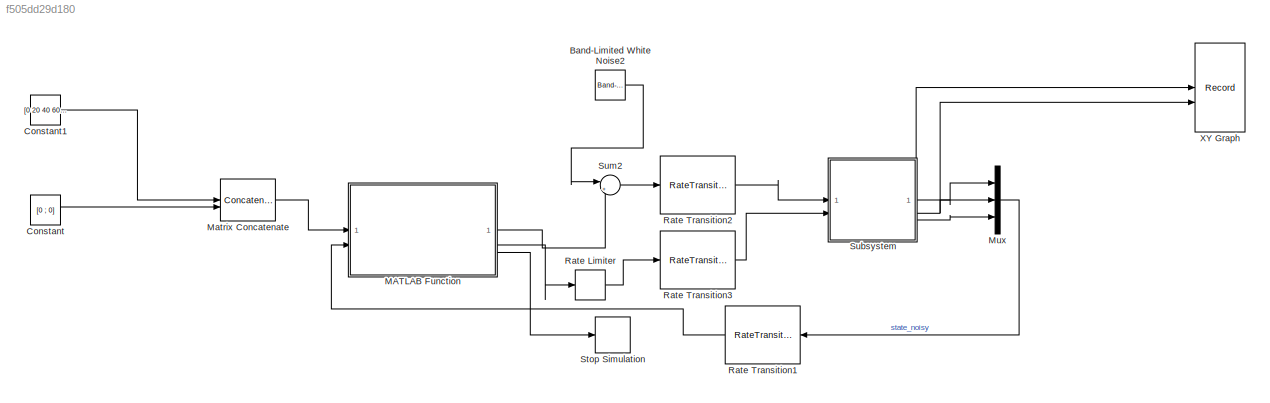
MODEL slx_f505dd29d180
KIND model
CONFIG AbsTol = auto
CONFIG EnableMultiTasking = off
CONFIG FixedStep = auto
CONFIG MaxStep = auto
CONFIG MinStep = auto
CONFIG RelTol = 1e-3
CONFIG SampleTimeConstraint = Unconstrained
CONFIG SolverName = VariableStepAuto
CONFIG StartTime = 0.0
CONFIG StopTime = 30
BLOCK [Reference] Band-Limited White Noise2  REF=simulink/Sources/Band-Limited
White Noise
  SourceBlock = simulink/Sources/Band-Limited\nWhite Noise
  SourceType = Band-Limited White Noise.
  Tag = noise_x
BLOCK [Constant] Constant
  Value = [0 ; 0]
BLOCK [Constant] Constant1
  Value = [0 20 40 60 80 100 120 140 160 180 200;0 10 20 20 10 0 -10 -20 -20 -10 0]
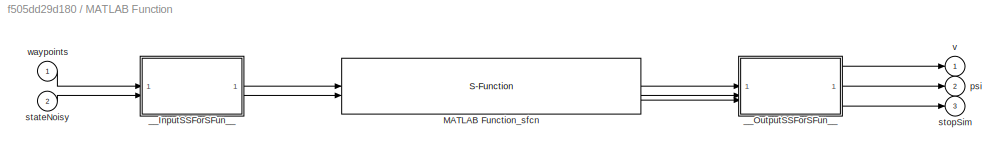
BLOCK [SubSystem] MATLAB Function
BLOCK [S-Function] MATLAB Function/MATLAB Function_sfcn
  CopyFcn = if ~strcmp(get_param(gcb,'Linkstatus'),'none') && ...\n~strcmp(get_param(gcb,'Linkstatus'),'implicit')      \n  set_param(gcb,'LinkStatus','none');                \nend
  EnableBusSupport = off
  FunctionName = MATLAB0_sf
  SFcnIsStateOwnerBlock = off
  SFunctionDeploymentMode = off
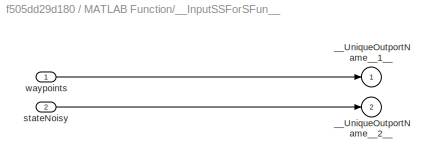
BLOCK [SubSystem] MATLAB Function/__InputSSForSFun__
  PermitHierarchicalResolution = ExplicitOnly
BLOCK [Outport] MATLAB Function/__InputSSForSFun__/__UniqueOutportName__1__
BLOCK [Outport] MATLAB Function/__InputSSForSFun__/__UniqueOutportName__2__
  Port = 2
BLOCK [Inport] MATLAB Function/__InputSSForSFun__/stateNoisy
  Port = 2
BLOCK [Inport] MATLAB Function/__InputSSForSFun__/waypoints
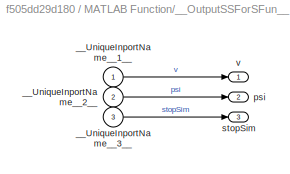
BLOCK [SubSystem] MATLAB Function/__OutputSSForSFun__
  PermitHierarchicalResolution = ExplicitOnly
BLOCK [Inport] MATLAB Function/__OutputSSForSFun__/__UniqueInportName__1__
BLOCK [Inport] MATLAB Function/__OutputSSForSFun__/__UniqueInportName__2__
  Port = 2
BLOCK [Inport] MATLAB Function/__OutputSSForSFun__/__UniqueInportName__3__
  Port = 3
BLOCK [Outport] MATLAB Function/__OutputSSForSFun__/psi
  Port = 2
BLOCK [Outport] MATLAB Function/__OutputSSForSFun__/stopSim
  Port = 3
BLOCK [Outport] MATLAB Function/__OutputSSForSFun__/v
BLOCK [Outport] MATLAB Function/psi
  Port = 2
BLOCK [Inport] MATLAB Function/stateNoisy
  Port = 2
BLOCK [Outport] MATLAB Function/stopSim
  Port = 3
BLOCK [Outport] MATLAB Function/v
BLOCK [Inport] MATLAB Function/waypoints
BLOCK [Concatenate] Matrix Concatenate
  ConcatenateDimension = 2
  Mode = Multidimensional array
BLOCK [Mux] Mux
  DisplayOption = bar
  Inputs = 3
BLOCK [RateLimiter] Rate Limiter
  FallingSlewLimit = -pi/4
  RisingSlewLimit = pi/4
  SampleTimeMode = inherited
BLOCK [RateTransition] Rate Transition1
  OutPortSampleTime = 1/100
BLOCK [RateTransition] Rate Transition2
  OutPortSampleTime = 1/1000
BLOCK [RateTransition] Rate Transition3
  OutPortSampleTime = 1/1000
BLOCK [Stop] Stop Simulation
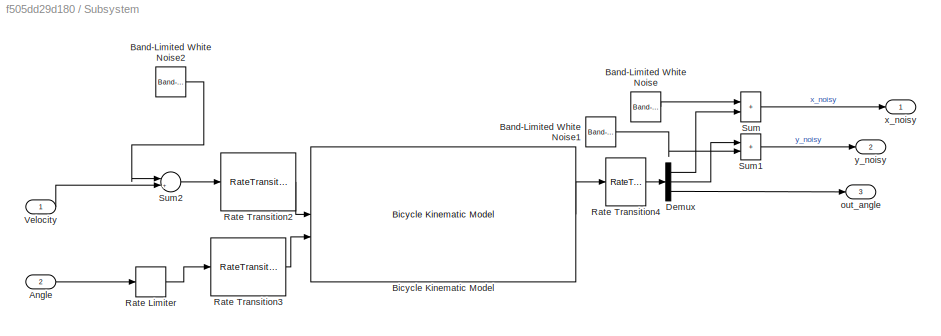
BLOCK [SubSystem] Subsystem
BLOCK [Inport] Subsystem/Angle
  Port = 2
BLOCK [Reference] Subsystem/Band-Limited White Noise  REF=simulink/Sources/Band-Limited
White Noise
  SourceBlock = simulink/Sources/Band-Limited\nWhite Noise
  SourceType = Band-Limited White Noise.
  Tag = noise_x
BLOCK [Reference] Subsystem/Band-Limited White Noise1  REF=simulink/Sources/Band-Limited
White Noise
  SourceBlock = simulink/Sources/Band-Limited\nWhite Noise
  SourceType = Band-Limited White Noise.
  Tag = noise_y
BLOCK [Reference] Subsystem/Band-Limited White Noise2  REF=simulink/Sources/Band-Limited
White Noise
  SourceBlock = simulink/Sources/Band-Limited\nWhite Noise
  SourceType = Band-Limited White Noise.
  Tag = noise_x
BLOCK [Reference] Subsystem/Bicycle Kinematic Model  REF=robotmobilelib/Bicycle Kinematic Model
  SourceBlock = robotmobilelib/Bicycle Kinematic Model
  SourceType = Bicycle Kinematic Model
BLOCK [Demux] Subsystem/Demux
  Outputs = 3
BLOCK [RateLimiter] Subsystem/Rate Limiter
  FallingSlewLimit = -pi/4
  RisingSlewLimit = pi/4
  SampleTimeMode = inherited
BLOCK [RateTransition] Subsystem/Rate Transition2
  OutPortSampleTime = 1/1000
BLOCK [RateTransition] Subsystem/Rate Transition3
  OutPortSampleTime = 1/1000
BLOCK [RateTransition] Subsystem/Rate Transition4
  OutPortSampleTime = 1/1000
BLOCK [Sum] Subsystem/Sum
  IconShape = rectangular
  Inputs = |++
BLOCK [Sum] Subsystem/Sum1
  IconShape = rectangular
  Inputs = |++
BLOCK [Sum] Subsystem/Sum2
  Inputs = |++
BLOCK [Inport] Subsystem/Velocity
BLOCK [Outport] Subsystem/out_angle
  Port = 3
BLOCK [Outport] Subsystem/x_noisy
BLOCK [Outport] Subsystem/y_noisy
  Port = 2
BLOCK [Sum] Sum2
  Inputs = |++
BLOCK [Record] XY Graph
  CompatibilityTag = XY
  FileSettingsInternal = {"entries":[{"content":{"excelSettings":{"content":{},"type":"Streamout.ExcelSettings"}},"type":"Streamout.FileSettingStorage","uuid":""}],"packageUris":["http:\/\/schema.mathworks.com\/mf0\/streamout_blocks\/R2020a"],"version":"1.0"}
  Layout = [1 1]
  SignalsInternal = {"entries":[{"content":{"signals":[{"content":{"blockPath":[],"dimensions":[1],"domain":"","lineColor":"#a2142f","plots":[1],"port":1,"sid":[""],"signalID":27,"signalName":"Subsystem:1"},"type":"RecordBlkView.Signal","uuid":""},{"content":{"blockPath":[],"dimensions":[1],"domain":"","lineColor":"#139fff","plots":[1],"port":2,"sid":[""],"signalID":31,"signalName":"Subsystem:2"},"type":"RecordBlkVie...<+166ch>
  VisualizationBindings = {"xyplotplugin":{"info":[{"series":[{"bindingParametersList":[{"parameter":"X-Axis","signalID":27,"signalName":"Subsystem:1"},{"parameter":"Y-Axis","signalID":31,"signalName":"Subsystem:2"}],"seriesID":486}],"subplotID":1}]}}
LINE Band-Limited White Noise2:1 -> Sum2:1
LINE Constant1:1 -> Matrix Concatenate:1
LINE Constant:1 -> Matrix Concatenate:2
LINE MATLAB Function/MATLAB Function_sfcn:1 -> MATLAB Function/__OutputSSForSFun__:1
LINE MATLAB Function/MATLAB Function_sfcn:2 -> MATLAB Function/__OutputSSForSFun__:2
LINE MATLAB Function/MATLAB Function_sfcn:3 -> MATLAB Function/__OutputSSForSFun__:3
LINE MATLAB Function/__InputSSForSFun__/stateNoisy:1 -> MATLAB Function/__InputSSForSFun__/__UniqueOutportName__2__:1
LINE MATLAB Function/__InputSSForSFun__/waypoints:1 -> MATLAB Function/__InputSSForSFun__/__UniqueOutportName__1__:1
LINE MATLAB Function/__InputSSForSFun__:1 -> MATLAB Function/MATLAB Function_sfcn:1
LINE MATLAB Function/__InputSSForSFun__:2 -> MATLAB Function/MATLAB Function_sfcn:2
LINE MATLAB Function/__OutputSSForSFun__/__UniqueInportName__1__:1 -> MATLAB Function/__OutputSSForSFun__/v:1
LINE MATLAB Function/__OutputSSForSFun__/__UniqueInportName__2__:1 -> MATLAB Function/__OutputSSForSFun__/psi:1
LINE MATLAB Function/__OutputSSForSFun__/__UniqueInportName__3__:1 -> MATLAB Function/__OutputSSForSFun__/stopSim:1
LINE MATLAB Function/__OutputSSForSFun__:1 -> MATLAB Function/v:1
LINE MATLAB Function/__OutputSSForSFun__:2 -> MATLAB Function/psi:1
LINE MATLAB Function/__OutputSSForSFun__:3 -> MATLAB Function/stopSim:1
LINE MATLAB Function/stateNoisy:1 -> MATLAB Function/__InputSSForSFun__:2
LINE MATLAB Function/waypoints:1 -> MATLAB Function/__InputSSForSFun__:1
LINE MATLAB Function:1 -> Sum2:2
LINE MATLAB Function:2 -> Rate Limiter:1
LINE MATLAB Function:3 -> Stop Simulation:1
LINE Matrix Concatenate:1 -> MATLAB Function:1
LINE Mux:1 -> Rate Transition1:1
LINE Rate Limiter:1 -> Rate Transition3:1
LINE Rate Transition1:1 -> MATLAB Function:2
LINE Rate Transition2:1 -> Subsystem:1
LINE Rate Transition3:1 -> Subsystem:2
LINE Subsystem/Angle:1 -> Subsystem/Rate Limiter:1
LINE Subsystem/Band-Limited White Noise1:1 -> Subsystem/Sum1:2
LINE Subsystem/Band-Limited White Noise2:1 -> Subsystem/Sum2:1
LINE Subsystem/Band-Limited White Noise:1 -> Subsystem/Sum:1
LINE Subsystem/Bicycle Kinematic Model:1 -> Subsystem/Rate Transition4:1
LINE Subsystem/Demux:1 -> Subsystem/Sum:2
LINE Subsystem/Demux:2 -> Subsystem/Sum1:1
LINE Subsystem/Demux:3 -> Subsystem/out_angle:1
LINE Subsystem/Rate Limiter:1 -> Subsystem/Rate Transition3:1
LINE Subsystem/Rate Transition2:1 -> Subsystem/Bicycle Kinematic Model:1
LINE Subsystem/Rate Transition3:1 -> Subsystem/Bicycle Kinematic Model:2
LINE Subsystem/Rate Transition4:1 -> Subsystem/Demux:1
LINE Subsystem/Sum1:1 -> Subsystem/y_noisy:1
LINE Subsystem/Sum2:1 -> Subsystem/Rate Transition2:1
LINE Subsystem/Sum:1 -> Subsystem/x_noisy:1
LINE Subsystem/Velocity:1 -> Subsystem/Sum2:2
NET Subsystem:1 -> Mux:1, XY Graph:1
NET Subsystem:2 -> Mux:2, XY Graph:2
LINE Subsystem:3 -> Mux:3
LINE Sum2:1 -> Rate Transition2:1
note: NET lines group one-source signal fan-out (src -> all destinations, sorted); 1:1 wires keep LINE
